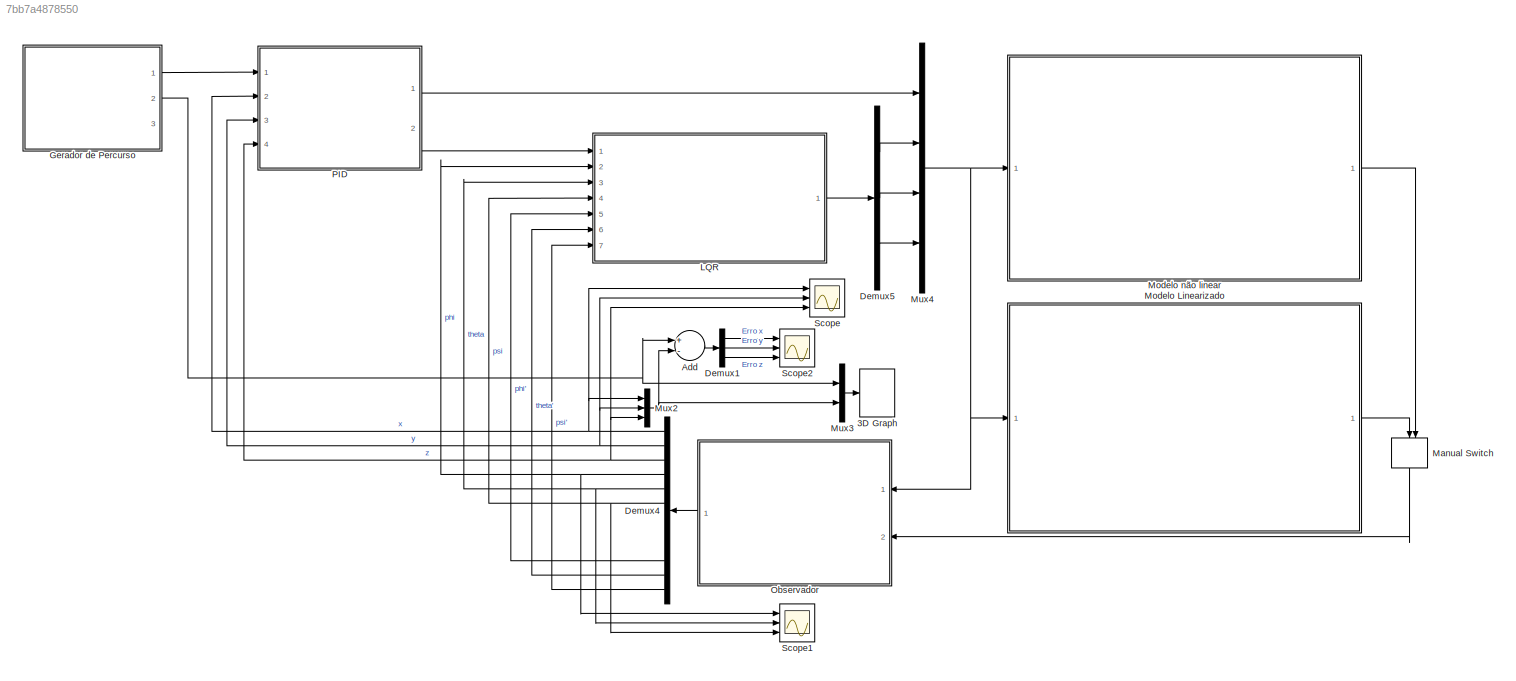
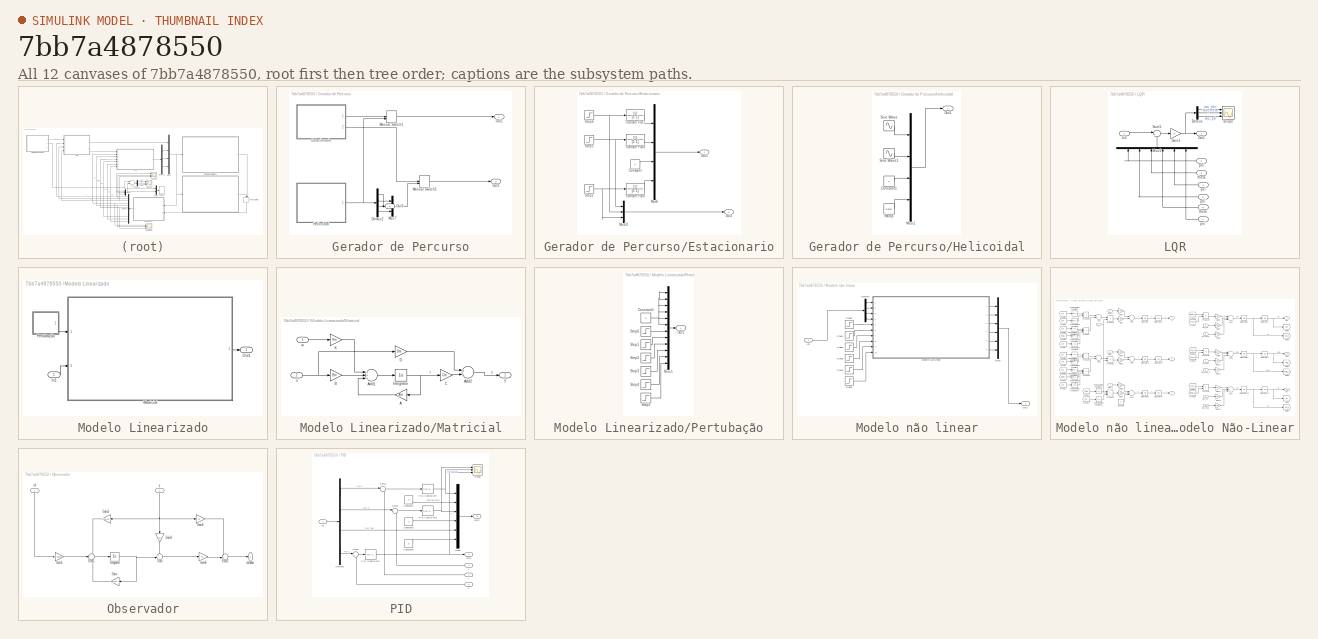
[diagram: thumbnail index - all 12 canvases of the model, root first then tree order]
MODEL slx_7bb7a4878550
KIND model
CONFIG AbsTol = auto
CONFIG EnableMultiTasking = off
CONFIG FixedStep = auto
CONFIG MaxStep = auto
CONFIG MinStep = auto
CONFIG RelTol = 1e-3
CONFIG SampleTimeConstraint = Unconstrained
CONFIG Solver = VariableStepAuto
CONFIG SolverName = VariableStepAuto
CONFIG StartTime = 0.0
CONFIG StopTime = 280
BLOCK [S-Function] 3D Graph
  CopyFcn = if exist('sfun3d','file'), sfun3d([],[],[],'CopyBlock'); end
  DeleteFcn = if exist('sfun3d','file'), sfun3d([],[],[],'DeleteBlock'); end
  EnableBusSupport = off
  FunctionName = sfun3d
  LoadFcn = if exist('sfun3d','file'), sfun3d([],[],[],'LoadBlock'); end
  NameChangeFcn = if exist('sfun3d','file'), sfun3d([],[],[],'NameChange'); end
  Parameters = ax,T,np,cp,gd,ls,mk,mx,hd,tb
  Ports = [1]
  SFcnIsStateOwnerBlock = off
  SFunctionDeploymentMode = off
BLOCK [Sum] Add
  InputSameDT = off
  Inputs = +-
  OutDataTypeStr = Inherit: Inherit via internal rule
  Ports = [2, 1]
  SaturateOnIntegerOverflow = off
BLOCK [Demux] Demux1
  DisplayOption = bar
  Outputs = 3
  Ports = [1, 3]
BLOCK [Demux] Demux4
  DisplayOption = bar
  Outputs = 12
  Ports = [1, 12]
BLOCK [Demux] Demux5
  DisplayOption = bar
  Outputs = 3
  Ports = [1, 3]
BLOCK [SubSystem] Gerador de Percurso
  Ports = [0, 3]
  RequestExecContextInheritance = off
  Variant = off
BLOCK [Demux] Gerador de Percurso/Demux2
  DisplayOption = bar
  Ports = [1, 4]
BLOCK [SubSystem] Gerador de Percurso/Estacionario
  Ports = [0, 2]
  RequestExecContextInheritance = off
  Variant = off
BLOCK [Constant] Gerador de Percurso/Estacionario/Constant
  Value = 0
BLOCK [Mux] Gerador de Percurso/Estacionario/Mux10
  DisplayOption = bar
  Inputs = 3
  Ports = [3, 1]
BLOCK [Mux] Gerador de Percurso/Estacionario/Mux6
  DisplayOption = bar
  Ports = [4, 1]
BLOCK [Outport] Gerador de Percurso/Estacionario/Out1
  IconDisplay = Port number
BLOCK [Outport] Gerador de Percurso/Estacionario/Out2
  IconDisplay = Port number
  Port = 2
BLOCK [Step] Gerador de Percurso/Estacionario/Step2
  After = 10
  SampleTime = 0
BLOCK [Step] Gerador de Percurso/Estacionario/Step5
  After = 2
  SampleTime = 0
BLOCK [Step] Gerador de Percurso/Estacionario/Step6
  After = 2
  SampleTime = 0
BLOCK [TransferFcn] Gerador de Percurso/Estacionario/Transfer Fcn4
  Denominator = [5 1]
BLOCK [TransferFcn] Gerador de Percurso/Estacionario/Transfer Fcn6
  Denominator = [5 1]
BLOCK [TransferFcn] Gerador de Percurso/Estacionario/Transfer Fcn7
  Denominator = [5 1]
BLOCK [SubSystem] Gerador de Percurso/Helicoidal
  Ports = [0, 1]
  RequestExecContextInheritance = off
  Variant = off
BLOCK [Constant] Gerador de Percurso/Helicoidal/Constant1
  Value = 0
BLOCK [Mux] Gerador de Percurso/Helicoidal/Mux1
  DisplayOption = bar
  Ports = [4, 1]
BLOCK [Outport] Gerador de Percurso/Helicoidal/Out1
  IconDisplay = Port number
BLOCK [Reference] Gerador de Percurso/Helicoidal/Ramp  REF=simulink/Sources/Ramp
  Ports = [0, 1]
  SourceBlock = simulink/Sources/Ramp
  SourceProductBaseCode = SL
  SourceProductName = Simulink
  SourceType = Ramp
BLOCK [Sin] Gerador de Percurso/Helicoidal/Sine Wave
  Amplitude = 3
  Frequency = 0.1
  Ports = [0, 1]
  SampleTime = 0
BLOCK [Sin] Gerador de Percurso/Helicoidal/Sine Wave1
  Amplitude = 3
  Frequency = 0.1
  Phase = pi/2
  Ports = [0, 1]
  SampleTime = 0
BLOCK [ManualSwitch] Gerador de Percurso/Manual Switch1
BLOCK [ManualSwitch] Gerador de Percurso/Manual Switch2
BLOCK [Mux] Gerador de Percurso/Mux7
  DisplayOption = bar
  Inputs = 3
  Ports = [3, 1]
BLOCK [Outport] Gerador de Percurso/Out1
  IconDisplay = Port number
BLOCK [Outport] Gerador de Percurso/Out2
  IconDisplay = Port number
  Port = 2
BLOCK [Outport] Gerador de Percurso/Out3
  IconDisplay = Port number
  Port = 3
BLOCK [SubSystem] LQR
  Ports = [7, 1]
  RequestExecContextInheritance = off
  Variant = off
BLOCK [Demux] LQR/Demux
  DisplayOption = bar
  Outputs = 3
  Ports = [1, 3]
BLOCK [Gain] LQR/Gain1
  Gain = K
  Multiplication = Matrix(K*u) (u vector)
  OutDataTypeStr = Inherit: Inherit via internal rule
  ParamDataTypeStr = Inherit: Inherit via internal rule
  SaturateOnIntegerOverflow = off
BLOCK [Inport] LQR/In1
  IconDisplay = Port number
BLOCK [Mux] LQR/Mux5
  DisplayOption = bar
  Inputs = 6
  Ports = [6, 1]
BLOCK [Outport] LQR/Out1
  IconDisplay = Port number
BLOCK [Scope] LQR/Scope
  NumInputPorts = 3
  Ports = [3]
  ScopeSpecificationString = Simulink.scopes.TimeScopeBlockCfg('CurrentConfiguration', extmgr.ConfigurationSet(extmgr.Configuration('Core','General UI',true,'FigureColor',[1 1 1]),extmgr.Configuration('Core','Source UI',true),extmgr.Configuration('Sources','WiredSimulink',true,'DataLoggingVariableName','ScopeData4'),extmgr.Configuration('Visuals','Time Domain',true,'SerializedDisplays',{struct('MinYLimReal','-0.11622','MaxYLi...<+3071ch>
BLOCK [Sum] LQR/Sum5
  IconShape = round
  InputSameDT = off
  Inputs = |+-
  OutDataTypeStr = Inherit: Inherit via internal rule
  Ports = [2, 1]
  SaturateOnIntegerOverflow = off
BLOCK [Inport] LQR/phi
  IconDisplay = Port number
  Port = 2
BLOCK [Inport] LQR/phi'
  IconDisplay = Port number
  Port = 5
BLOCK [Inport] LQR/psi
  IconDisplay = Port number
  Port = 4
BLOCK [Inport] LQR/psi'
  IconDisplay = Port number
  Port = 7
BLOCK [Inport] LQR/theta
  IconDisplay = Port number
  Port = 3
BLOCK [Inport] LQR/theta'
  IconDisplay = Port number
  Port = 6
BLOCK [ManualSwitch] Manual Switch
BLOCK [SubSystem] Modelo Linearizado
  Ports = [1, 1]
  RequestExecContextInheritance = off
  Variant = off
BLOCK [Inport] Modelo Linearizado/In1
  IconDisplay = Port number
BLOCK [SubSystem] Modelo Linearizado/Matricial
  Ports = [2, 1]
  RequestExecContextInheritance = off
  Variant = off
BLOCK [Gain] Modelo Linearizado/Matricial/A
  Gain = Am
  Multiplication = Matrix(K*u) (u vector)
  OutDataTypeStr = Inherit: Inherit via internal rule
  ParamDataTypeStr = Inherit: Inherit via internal rule
  SaturateOnIntegerOverflow = off
BLOCK [Sum] Modelo Linearizado/Matricial/Add1
  InputSameDT = off
  Inputs = +++
  OutDataTypeStr = Inherit: Inherit via internal rule
  Ports = [3, 1]
  SaturateOnIntegerOverflow = off
BLOCK [Sum] Modelo Linearizado/Matricial/Add2
  InputSameDT = off
  OutDataTypeStr = Inherit: Inherit via internal rule
  Ports = [2, 1]
  SaturateOnIntegerOverflow = off
BLOCK [Gain] Modelo Linearizado/Matricial/B
  Gain = Bm
  Multiplication = Matrix(K*u) (u vector)
  OutDataTypeStr = Inherit: Inherit via internal rule
  ParamDataTypeStr = Inherit: Inherit via internal rule
  SaturateOnIntegerOverflow = off
BLOCK [Gain] Modelo Linearizado/Matricial/C
  Gain = Cm
  Multiplication = Matrix(K*u) (u vector)
  OutDataTypeStr = Inherit: Inherit via internal rule
  ParamDataTypeStr = Inherit: Inherit via internal rule
  SaturateOnIntegerOverflow = off
BLOCK [Gain] Modelo Linearizado/Matricial/D
  Gain = Dm
  Multiplication = Matrix(K*u) (u vector)
  OutDataTypeStr = Inherit: Inherit via internal rule
  ParamDataTypeStr = Inherit: Inherit via internal rule
  SaturateOnIntegerOverflow = off
BLOCK [Integrator] Modelo Linearizado/Matricial/Integrator
  Ports = [1, 1]
BLOCK [Gain] Modelo Linearizado/Matricial/K
  Gain = Km
  Multiplication = Matrix(K*u) (u vector)
  OutDataTypeStr = Inherit: Inherit via internal rule
  ParamDataTypeStr = Inherit: Inherit via internal rule
  SaturateOnIntegerOverflow = off
BLOCK [Inport] Modelo Linearizado/Matricial/u
  IconDisplay = Port number
  Port = 2
BLOCK [Inport] Modelo Linearizado/Matricial/w
  IconDisplay = Port number
BLOCK [Outport] Modelo Linearizado/Matricial/y
  IconDisplay = Port number
BLOCK [Outport] Modelo Linearizado/Out1
  IconDisplay = Port number
BLOCK [SubSystem] Modelo Linearizado/Pertubação
  Ports = [0, 1]
  RequestExecContextInheritance = off
  Variant = off
BLOCK [Constant] Modelo Linearizado/Pertubação/Constant1
  Value = 0
BLOCK [Mux] Modelo Linearizado/Pertubação/Mux1
  DisplayOption = bar
  Inputs = 12
  Ports = [12, 1]
BLOCK [Outport] Modelo Linearizado/Pertubação/Out1
  IconDisplay = Port number
BLOCK [Step] Modelo Linearizado/Pertubação/Step1
  After = 0.01
  SampleTime = 0
  Time = 250
BLOCK [Step] Modelo Linearizado/Pertubação/Step2
  After = 0.01
  SampleTime = 0
  Time = 300
BLOCK [Step] Modelo Linearizado/Pertubação/Step3
  After = 0.01
  SampleTime = 0
  Time = 350
BLOCK [Step] Modelo Linearizado/Pertubação/Step4
  After = 0.01
  SampleTime = 0
  Time = 400
BLOCK [Step] Modelo Linearizado/Pertubação/Step5
  After = 0.01
  SampleTime = 0
  Time = 450
BLOCK [Step] Modelo Linearizado/Pertubação/Step6
  After = 0.01
  SampleTime = 0
  Time = 200
BLOCK [SubSystem] Modelo não linear
  Ports = [1, 1]
  RequestExecContextInheritance = off
  Variant = off
BLOCK [Demux] Modelo não linear/Demux7
  DisplayOption = bar
  Ports = [1, 4]
BLOCK [Inport] Modelo não linear/In1
  IconDisplay = Port number
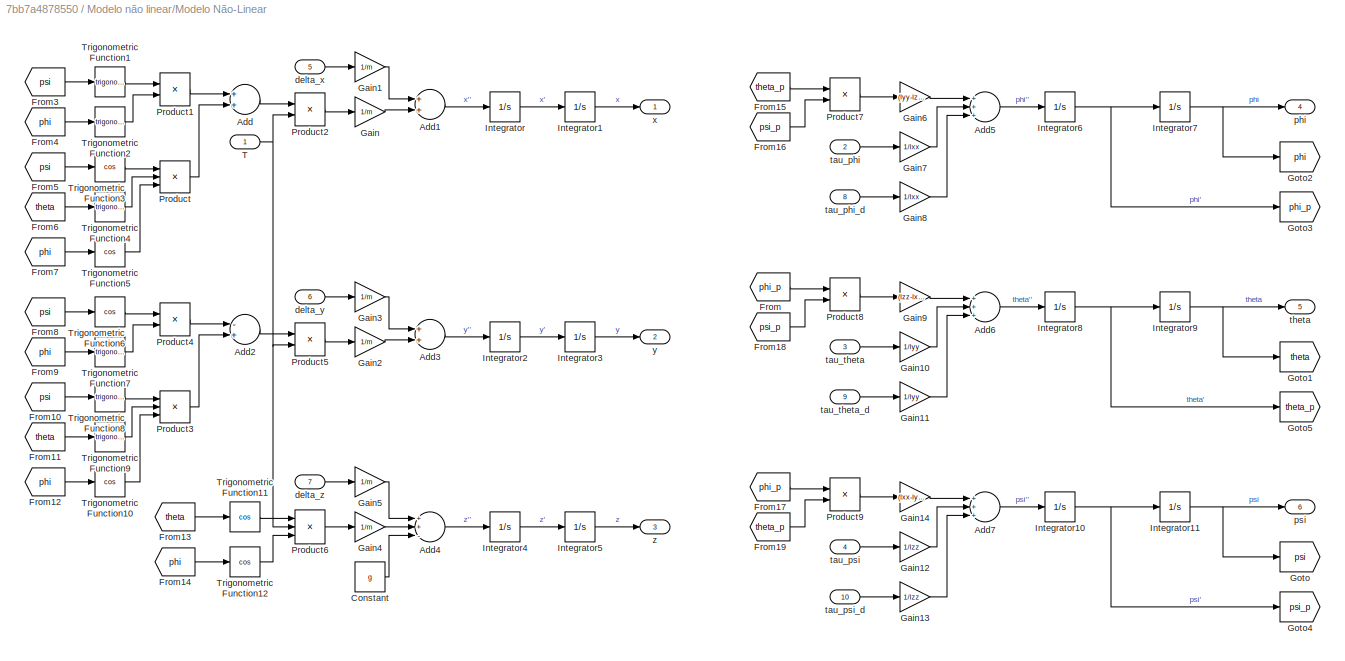
BLOCK [SubSystem] Modelo não linear/Modelo Não-Linear
  Ports = [10, 6]
  RequestExecContextInheritance = off
  Variant = off
BLOCK [Sum] Modelo não linear/Modelo Não-Linear/Add
  InputSameDT = off
  OutDataTypeStr = Inherit: Inherit via internal rule
  Ports = [2, 1]
  SaturateOnIntegerOverflow = off
BLOCK [Sum] Modelo não linear/Modelo Não-Linear/Add1
  InputSameDT = off
  OutDataTypeStr = Inherit: Inherit via internal rule
  Ports = [2, 1]
  SaturateOnIntegerOverflow = off
BLOCK [Sum] Modelo não linear/Modelo Não-Linear/Add2
  InputSameDT = off
  Inputs = -+
  OutDataTypeStr = Inherit: Inherit via internal rule
  Ports = [2, 1]
  SaturateOnIntegerOverflow = off
BLOCK [Sum] Modelo não linear/Modelo Não-Linear/Add3
  InputSameDT = off
  OutDataTypeStr = Inherit: Inherit via internal rule
  Ports = [2, 1]
  SaturateOnIntegerOverflow = off
BLOCK [Sum] Modelo não linear/Modelo Não-Linear/Add4
  InputSameDT = off
  Inputs = ++-
  OutDataTypeStr = Inherit: Inherit via internal rule
  Ports = [3, 1]
  SaturateOnIntegerOverflow = off
BLOCK [Sum] Modelo não linear/Modelo Não-Linear/Add5
  InputSameDT = off
  Inputs = +++
  OutDataTypeStr = Inherit: Inherit via internal rule
  Ports = [3, 1]
  SaturateOnIntegerOverflow = off
BLOCK [Sum] Modelo não linear/Modelo Não-Linear/Add6
  InputSameDT = off
  Inputs = +++
  OutDataTypeStr = Inherit: Inherit via internal rule
  Ports = [3, 1]
  SaturateOnIntegerOverflow = off
BLOCK [Sum] Modelo não linear/Modelo Não-Linear/Add7
  InputSameDT = off
  Inputs = +++
  OutDataTypeStr = Inherit: Inherit via internal rule
  Ports = [3, 1]
  SaturateOnIntegerOverflow = off
BLOCK [Constant] Modelo não linear/Modelo Não-Linear/Constant
  Value = g
BLOCK [From] Modelo não linear/Modelo Não-Linear/From
  GotoTag = phi_p
BLOCK [From] Modelo não linear/Modelo Não-Linear/From10
  GotoTag = psi
BLOCK [From] Modelo não linear/Modelo Não-Linear/From11
  GotoTag = theta
BLOCK [From] Modelo não linear/Modelo Não-Linear/From12
  GotoTag = phi
BLOCK [From] Modelo não linear/Modelo Não-Linear/From13
  GotoTag = theta
BLOCK [From] Modelo não linear/Modelo Não-Linear/From14
  GotoTag = phi
BLOCK [From] Modelo não linear/Modelo Não-Linear/From15
  GotoTag = theta_p
BLOCK [From] Modelo não linear/Modelo Não-Linear/From16
  GotoTag = psi_p
BLOCK [From] Modelo não linear/Modelo Não-Linear/From17
  GotoTag = phi_p
BLOCK [From] Modelo não linear/Modelo Não-Linear/From18
  GotoTag = psi_p
BLOCK [From] Modelo não linear/Modelo Não-Linear/From19
  GotoTag = theta_p
BLOCK [From] Modelo não linear/Modelo Não-Linear/From3
  GotoTag = psi
BLOCK [From] Modelo não linear/Modelo Não-Linear/From4
  GotoTag = phi
BLOCK [From] Modelo não linear/Modelo Não-Linear/From5
  GotoTag = psi
BLOCK [From] Modelo não linear/Modelo Não-Linear/From6
  GotoTag = theta
BLOCK [From] Modelo não linear/Modelo Não-Linear/From7
  GotoTag = phi
BLOCK [From] Modelo não linear/Modelo Não-Linear/From8
  GotoTag = psi
BLOCK [From] Modelo não linear/Modelo Não-Linear/From9
  GotoTag = phi
BLOCK [Gain] Modelo não linear/Modelo Não-Linear/Gain
  Gain = 1/m
  OutDataTypeStr = Inherit: Inherit via internal rule
  ParamDataTypeStr = Inherit: Inherit via internal rule
  SaturateOnIntegerOverflow = off
BLOCK [Gain] Modelo não linear/Modelo Não-Linear/Gain1
  Gain = 1/m
  OutDataTypeStr = Inherit: Inherit via internal rule
  ParamDataTypeStr = Inherit: Inherit via internal rule
  SaturateOnIntegerOverflow = off
BLOCK [Gain] Modelo não linear/Modelo Não-Linear/Gain10
  Gain = 1/Iyy
  OutDataTypeStr = Inherit: Inherit via internal rule
  ParamDataTypeStr = Inherit: Inherit via internal rule
  SaturateOnIntegerOverflow = off
BLOCK [Gain] Modelo não linear/Modelo Não-Linear/Gain11
  Gain = 1/Iyy
  OutDataTypeStr = Inherit: Inherit via internal rule
  ParamDataTypeStr = Inherit: Inherit via internal rule
  SaturateOnIntegerOverflow = off
BLOCK [Gain] Modelo não linear/Modelo Não-Linear/Gain12
  Gain = 1/Izz
  OutDataTypeStr = Inherit: Inherit via internal rule
  ParamDataTypeStr = Inherit: Inherit via internal rule
  SaturateOnIntegerOverflow = off
BLOCK [Gain] Modelo não linear/Modelo Não-Linear/Gain13
  Gain = 1/Izz
  OutDataTypeStr = Inherit: Inherit via internal rule
  ParamDataTypeStr = Inherit: Inherit via internal rule
  SaturateOnIntegerOverflow = off
BLOCK [Gain] Modelo não linear/Modelo Não-Linear/Gain14
  Gain = (Ixx-Iyy)/Izz
  OutDataTypeStr = Inherit: Inherit via internal rule
  ParamDataTypeStr = Inherit: Inherit via internal rule
  SaturateOnIntegerOverflow = off
BLOCK [Gain] Modelo não linear/Modelo Não-Linear/Gain2
  Gain = 1/m
  OutDataTypeStr = Inherit: Inherit via internal rule
  ParamDataTypeStr = Inherit: Inherit via internal rule
  SaturateOnIntegerOverflow = off
BLOCK [Gain] Modelo não linear/Modelo Não-Linear/Gain3
  Gain = 1/m
  OutDataTypeStr = Inherit: Inherit via internal rule
  ParamDataTypeStr = Inherit: Inherit via internal rule
  SaturateOnIntegerOverflow = off
BLOCK [Gain] Modelo não linear/Modelo Não-Linear/Gain4
  Gain = 1/m
  OutDataTypeStr = Inherit: Inherit via internal rule
  ParamDataTypeStr = Inherit: Inherit via internal rule
  SaturateOnIntegerOverflow = off
BLOCK [Gain] Modelo não linear/Modelo Não-Linear/Gain5
  Gain = 1/m
  OutDataTypeStr = Inherit: Inherit via internal rule
  ParamDataTypeStr = Inherit: Inherit via internal rule
  SaturateOnIntegerOverflow = off
BLOCK [Gain] Modelo não linear/Modelo Não-Linear/Gain6
  Gain = (Iyy-Izz)/Ixx
  OutDataTypeStr = Inherit: Inherit via internal rule
  ParamDataTypeStr = Inherit: Inherit via internal rule
  SaturateOnIntegerOverflow = off
BLOCK [Gain] Modelo não linear/Modelo Não-Linear/Gain7
  Gain = 1/Ixx
  OutDataTypeStr = Inherit: Inherit via internal rule
  ParamDataTypeStr = Inherit: Inherit via internal rule
  SaturateOnIntegerOverflow = off
BLOCK [Gain] Modelo não linear/Modelo Não-Linear/Gain8
  Gain = 1/Ixx
  OutDataTypeStr = Inherit: Inherit via internal rule
  ParamDataTypeStr = Inherit: Inherit via internal rule
  SaturateOnIntegerOverflow = off
BLOCK [Gain] Modelo não linear/Modelo Não-Linear/Gain9
  Gain = (Izz-Ixx)/Iyy
  OutDataTypeStr = Inherit: Inherit via internal rule
  ParamDataTypeStr = Inherit: Inherit via internal rule
  SaturateOnIntegerOverflow = off
BLOCK [Goto] Modelo não linear/Modelo Não-Linear/Goto
  GotoTag = psi
BLOCK [Goto] Modelo não linear/Modelo Não-Linear/Goto1
  GotoTag = theta
BLOCK [Goto] Modelo não linear/Modelo Não-Linear/Goto2
  GotoTag = phi
BLOCK [Goto] Modelo não linear/Modelo Não-Linear/Goto3
  GotoTag = phi_p
BLOCK [Goto] Modelo não linear/Modelo Não-Linear/Goto4
  GotoTag = psi_p
BLOCK [Goto] Modelo não linear/Modelo Não-Linear/Goto5
  GotoTag = theta_p
BLOCK [Integrator] Modelo não linear/Modelo Não-Linear/Integrator
  Ports = [1, 1]
BLOCK [Integrator] Modelo não linear/Modelo Não-Linear/Integrator1
  Ports = [1, 1]
BLOCK [Integrator] Modelo não linear/Modelo Não-Linear/Integrator10
  Ports = [1, 1]
BLOCK [Integrator] Modelo não linear/Modelo Não-Linear/Integrator11
  Ports = [1, 1]
BLOCK [Integrator] Modelo não linear/Modelo Não-Linear/Integrator2
  Ports = [1, 1]
BLOCK [Integrator] Modelo não linear/Modelo Não-Linear/Integrator3
  Ports = [1, 1]
BLOCK [Integrator] Modelo não linear/Modelo Não-Linear/Integrator4
  Ports = [1, 1]
BLOCK [Integrator] Modelo não linear/Modelo Não-Linear/Integrator5
  Ports = [1, 1]
BLOCK [Integrator] Modelo não linear/Modelo Não-Linear/Integrator6
  Ports = [1, 1]
BLOCK [Integrator] Modelo não linear/Modelo Não-Linear/Integrator7
  Ports = [1, 1]
BLOCK [Integrator] Modelo não linear/Modelo Não-Linear/Integrator8
  Ports = [1, 1]
BLOCK [Integrator] Modelo não linear/Modelo Não-Linear/Integrator9
  Ports = [1, 1]
BLOCK [Product] Modelo não linear/Modelo Não-Linear/Product
  InputSameDT = off
  Inputs = 3
  OutDataTypeStr = Inherit: Inherit via internal rule
  Ports = [3, 1]
  RndMeth = Floor
  SaturateOnIntegerOverflow = off
BLOCK [Product] Modelo não linear/Modelo Não-Linear/Product1
  InputSameDT = off
  OutDataTypeStr = Inherit: Inherit via internal rule
  Ports = [2, 1]
  RndMeth = Floor
  SaturateOnIntegerOverflow = off
BLOCK [Product] Modelo não linear/Modelo Não-Linear/Product2
  InputSameDT = off
  OutDataTypeStr = Inherit: Inherit via internal rule
  Ports = [2, 1]
  RndMeth = Floor
  SaturateOnIntegerOverflow = off
BLOCK [Product] Modelo não linear/Modelo Não-Linear/Product3
  InputSameDT = off
  Inputs = 3
  OutDataTypeStr = Inherit: Inherit via internal rule
  Ports = [3, 1]
  RndMeth = Floor
  SaturateOnIntegerOverflow = off
BLOCK [Product] Modelo não linear/Modelo Não-Linear/Product4
  InputSameDT = off
  OutDataTypeStr = Inherit: Inherit via internal rule
  Ports = [2, 1]
  RndMeth = Floor
  SaturateOnIntegerOverflow = off
BLOCK [Product] Modelo não linear/Modelo Não-Linear/Product5
  InputSameDT = off
  OutDataTypeStr = Inherit: Inherit via internal rule
  Ports = [2, 1]
  RndMeth = Floor
  SaturateOnIntegerOverflow = off
BLOCK [Product] Modelo não linear/Modelo Não-Linear/Product6
  InputSameDT = off
  Inputs = 3
  OutDataTypeStr = Inherit: Inherit via internal rule
  Ports = [3, 1]
  RndMeth = Floor
  SaturateOnIntegerOverflow = off
BLOCK [Product] Modelo não linear/Modelo Não-Linear/Product7
  InputSameDT = off
  OutDataTypeStr = Inherit: Inherit via internal rule
  Ports = [2, 1]
  RndMeth = Floor
  SaturateOnIntegerOverflow = off
BLOCK [Product] Modelo não linear/Modelo Não-Linear/Product8
  InputSameDT = off
  OutDataTypeStr = Inherit: Inherit via internal rule
  Ports = [2, 1]
  RndMeth = Floor
  SaturateOnIntegerOverflow = off
BLOCK [Product] Modelo não linear/Modelo Não-Linear/Product9
  InputSameDT = off
  OutDataTypeStr = Inherit: Inherit via internal rule
  Ports = [2, 1]
  RndMeth = Floor
  SaturateOnIntegerOverflow = off
BLOCK [Inport] Modelo não linear/Modelo Não-Linear/T
  IconDisplay = Port number
BLOCK [Trigonometry] Modelo não linear/Modelo Não-Linear/Trigonometric Function1
  Ports = [1, 1]
BLOCK [Trigonometry] Modelo não linear/Modelo Não-Linear/Trigonometric Function10
  Operator = cos
  Ports = [1, 1]
BLOCK [Trigonometry] Modelo não linear/Modelo Não-Linear/Trigonometric Function11
  Operator = cos
  Ports = [1, 1]
BLOCK [Trigonometry] Modelo não linear/Modelo Não-Linear/Trigonometric Function12
  Operator = cos
  Ports = [1, 1]
BLOCK [Trigonometry] Modelo não linear/Modelo Não-Linear/Trigonometric Function2
  Ports = [1, 1]
BLOCK [Trigonometry] Modelo não linear/Modelo Não-Linear/Trigonometric Function3
  Operator = cos
  Ports = [1, 1]
BLOCK [Trigonometry] Modelo não linear/Modelo Não-Linear/Trigonometric Function4
  Ports = [1, 1]
BLOCK [Trigonometry] Modelo não linear/Modelo Não-Linear/Trigonometric Function5
  Operator = cos
  Ports = [1, 1]
BLOCK [Trigonometry] Modelo não linear/Modelo Não-Linear/Trigonometric Function6
  Operator = cos
  Ports = [1, 1]
BLOCK [Trigonometry] Modelo não linear/Modelo Não-Linear/Trigonometric Function7
  Ports = [1, 1]
BLOCK [Trigonometry] Modelo não linear/Modelo Não-Linear/Trigonometric Function8
  Ports = [1, 1]
BLOCK [Trigonometry] Modelo não linear/Modelo Não-Linear/Trigonometric Function9
  Ports = [1, 1]
BLOCK [Inport] Modelo não linear/Modelo Não-Linear/delta_x
  IconDisplay = Port number
  Port = 5
BLOCK [Inport] Modelo não linear/Modelo Não-Linear/delta_y
  IconDisplay = Port number
  Port = 6
BLOCK [Inport] Modelo não linear/Modelo Não-Linear/delta_z
  IconDisplay = Port number
  Port = 7
BLOCK [Outport] Modelo não linear/Modelo Não-Linear/phi
  IconDisplay = Port number
  Port = 4
BLOCK [Outport] Modelo não linear/Modelo Não-Linear/psi
  IconDisplay = Port number
  Port = 6
BLOCK [Inport] Modelo não linear/Modelo Não-Linear/tau_phi
  IconDisplay = Port number
  Port = 2
BLOCK [Inport] Modelo não linear/Modelo Não-Linear/tau_phi_d
  IconDisplay = Port number
  Port = 8
BLOCK [Inport] Modelo não linear/Modelo Não-Linear/tau_psi
  IconDisplay = Port number
  Port = 4
BLOCK [Inport] Modelo não linear/Modelo Não-Linear/tau_psi_d
  IconDisplay = Port number
  Port = 10
BLOCK [Inport] Modelo não linear/Modelo Não-Linear/tau_theta
  IconDisplay = Port number
  Port = 3
BLOCK [Inport] Modelo não linear/Modelo Não-Linear/tau_theta_d
  IconDisplay = Port number
  Port = 9
BLOCK [Outport] Modelo não linear/Modelo Não-Linear/theta
  IconDisplay = Port number
  Port = 5
BLOCK [Outport] Modelo não linear/Modelo Não-Linear/x
  IconDisplay = Port number
BLOCK [Outport] Modelo não linear/Modelo Não-Linear/y
  IconDisplay = Port number
  Port = 2
BLOCK [Outport] Modelo não linear/Modelo Não-Linear/z
  IconDisplay = Port number
  Port = 3
BLOCK [Mux] Modelo não linear/Mux9
  DisplayOption = bar
  Inputs = 6
  Ports = [6, 1]
BLOCK [Outport] Modelo não linear/Out1
  IconDisplay = Port number
BLOCK [Step] Modelo não linear/Step1
  After = 0.5
  SampleTime = 0
  Time = 250
BLOCK [Step] Modelo não linear/Step2
  After = 0.5
  SampleTime = 0
  Time = 300
BLOCK [Step] Modelo não linear/Step3
  After = 0.5
  SampleTime = 0
  Time = 350
BLOCK [Step] Modelo não linear/Step4
  After = 0.5
  SampleTime = 0
  Time = 400
BLOCK [Step] Modelo não linear/Step5
  After = 0.5
  SampleTime = 0
  Time = 450
BLOCK [Step] Modelo não linear/Step6
  After = 0.5
  SampleTime = 0
  Time = 200
BLOCK [Mux] Mux2
  DisplayOption = bar
  Inputs = 3
  Ports = [3, 1]
BLOCK [Mux] Mux3
  DisplayOption = bar
  Inputs = 2
  Ports = [2, 1]
BLOCK [Mux] Mux4
  DisplayOption = bar
  Ports = [4, 1]
BLOCK [SubSystem] Observador
  Ports = [2, 1]
  RequestExecContextInheritance = off
  Variant = off
BLOCK [Gain] Observador/Gain
  Gain = A22-Lb*A12
  Multiplication = Matrix(K*u) (u vector)
  OutDataTypeStr = Inherit: Inherit via internal rule
  ParamDataTypeStr = Inherit: Inherit via internal rule
  SaturateOnIntegerOverflow = off
BLOCK [Gain] Observador/Gain1
  Gain = B2-Lb*B1
  Multiplication = Matrix(K*u) (u vector)
  OutDataTypeStr = Inherit: Inherit via internal rule
  ParamDataTypeStr = Inherit: Inherit via internal rule
  SaturateOnIntegerOverflow = off
BLOCK [Gain] Observador/Gain2
  Gain = Lb
  Multiplication = Matrix(K*u) (u vector)
  OutDataTypeStr = Inherit: Inherit via internal rule
  ParamDataTypeStr = Inherit: Inherit via internal rule
  SaturateOnIntegerOverflow = off
BLOCK [Gain] Observador/Gain3
  Gain = (A22-Lb*A12)*Lb + (A21 - Lb*A11)
  Multiplication = Matrix(K*u) (u vector)
  OutDataTypeStr = Inherit: Inherit via internal rule
  ParamDataTypeStr = Inherit: Inherit via internal rule
  SaturateOnIntegerOverflow = off
BLOCK [Gain] Observador/Gain5
  Gain = Y1
  Multiplication = Matrix(K*u) (u vector)
  OutDataTypeStr = Inherit: Inherit via internal rule
  ParamDataTypeStr = Inherit: Inherit via internal rule
  SaturateOnIntegerOverflow = off
BLOCK [Gain] Observador/Gain6
  Gain = Y2
  Multiplication = Matrix(K*u) (u vector)
  OutDataTypeStr = Inherit: Inherit via internal rule
  ParamDataTypeStr = Inherit: Inherit via internal rule
  SaturateOnIntegerOverflow = off
BLOCK [Integrator] Observador/Integrator
  Ports = [1, 1]
BLOCK [Sum] Observador/Sum
  IconShape = round
  InputSameDT = off
  Inputs = ++|
  OutDataTypeStr = Inherit: Inherit via internal rule
  Ports = [2, 1]
  SaturateOnIntegerOverflow = off
BLOCK [Sum] Observador/Sum1
  IconShape = round
  InputSameDT = off
  Inputs = +++
  OutDataTypeStr = Inherit: Inherit via internal rule
  Ports = [3, 1]
  SaturateOnIntegerOverflow = off
BLOCK [Sum] Observador/Sum2
  IconShape = round
  InputSameDT = off
  Inputs = ++|
  OutDataTypeStr = Inherit: Inherit via internal rule
  Ports = [2, 1]
  SaturateOnIntegerOverflow = off
BLOCK [Outport] Observador/estados 
  IconDisplay = Port number
BLOCK [Inport] Observador/ref
  IconDisplay = Port number
BLOCK [Inport] Observador/y
  IconDisplay = Port number
  Port = 2
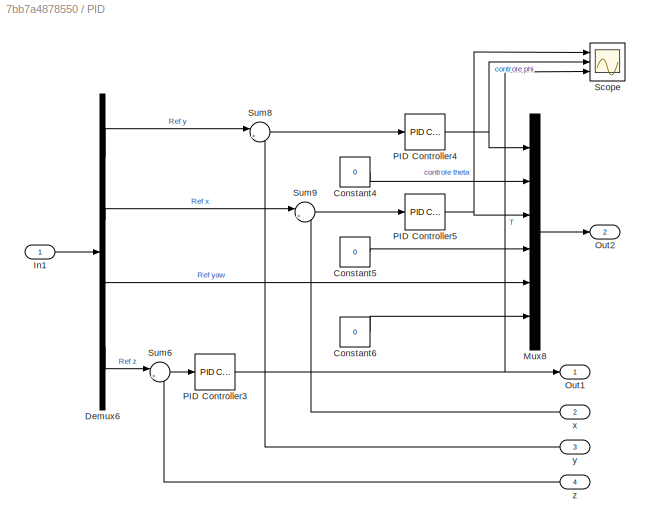
BLOCK [SubSystem] PID
  Ports = [4, 2]
  RequestExecContextInheritance = off
  Variant = off
BLOCK [Constant] PID/Constant4
  Value = 0
BLOCK [Constant] PID/Constant5
  Value = 0
BLOCK [Constant] PID/Constant6
  Value = 0
BLOCK [Demux] PID/Demux6
  DisplayOption = bar
  Ports = [1, 4]
BLOCK [Inport] PID/In1
  IconDisplay = Port number
BLOCK [Mux] PID/Mux8
  DisplayOption = bar
  Inputs = 6
  Ports = [6, 1]
BLOCK [Outport] PID/Out1
  IconDisplay = Port number
BLOCK [Outport] PID/Out2
  IconDisplay = Port number
  Port = 2
BLOCK [Reference] PID/PID Controller3  REF=simulink/Continuous/PID Controller
  Ports = [1, 1]
  SourceBlock = simulink/Continuous/PID Controller
  SourceProductBaseCode = SL
  SourceProductName = Simulink
  SourceType = PID 1dof
BLOCK [Reference] PID/PID Controller4  REF=simulink/Continuous/PID Controller
  Ports = [1, 1]
  SourceBlock = simulink/Continuous/PID Controller
  SourceProductBaseCode = SL
  SourceProductName = Simulink
  SourceType = PID 1dof
BLOCK [Reference] PID/PID Controller5  REF=simulink/Continuous/PID Controller
  Ports = [1, 1]
  SourceBlock = simulink/Continuous/PID Controller
  SourceProductBaseCode = SL
  SourceProductName = Simulink
  SourceType = PID 1dof
BLOCK [Scope] PID/Scope
  NumInputPorts = 3
  Ports = [3]
  ScopeSpecificationString = Simulink.scopes.TimeScopeBlockCfg('CurrentConfiguration', extmgr.ConfigurationSet(extmgr.Configuration('Core','General UI',true,'FigureColor',[1 1 1]),extmgr.Configuration('Core','Source UI',true),extmgr.Configuration('Sources','WiredSimulink',true,'DataLoggingVariableName','ScopeData3'),extmgr.Configuration('Visuals','Time Domain',true,'SerializedDisplays',{struct('MinYLimReal','-0.00982','MaxYLi...<+3075ch>
BLOCK [Sum] PID/Sum6
  IconShape = round
  InputSameDT = off
  Inputs = |+-
  OutDataTypeStr = Inherit: Inherit via internal rule
  Ports = [2, 1]
  SaturateOnIntegerOverflow = off
BLOCK [Sum] PID/Sum8
  IconShape = round
  InputSameDT = off
  Inputs = |+-
  OutDataTypeStr = Inherit: Inherit via internal rule
  Ports = [2, 1]
  SaturateOnIntegerOverflow = off
BLOCK [Sum] PID/Sum9
  IconShape = round
  InputSameDT = off
  Inputs = |+-
  OutDataTypeStr = Inherit: Inherit via internal rule
  Ports = [2, 1]
  SaturateOnIntegerOverflow = off
BLOCK [Inport] PID/x
  IconDisplay = Port number
  Port = 2
BLOCK [Inport] PID/y
  IconDisplay = Port number
  Port = 3
BLOCK [Inport] PID/z
  IconDisplay = Port number
  Port = 4
BLOCK [Scope] Scope
  NumInputPorts = 3
  Ports = [3]
  ScopeSpecificationString = Simulink.scopes.TimeScopeBlockCfg('CurrentConfiguration', extmgr.ConfigurationSet(extmgr.Configuration('Core','General UI',true,'FigureColor',[1 1 1]),extmgr.Configuration('Core','Source UI',true),extmgr.Configuration('Sources','WiredSimulink',true),extmgr.Configuration('Visuals','Time Domain',true,'SerializedDisplays',{struct('MinYLimReal','-0.2903','MaxYLimReal','2.61273','YLabelReal','','MinYLi...<+3038ch>
BLOCK [Scope] Scope1
  NumInputPorts = 3
  Ports = [3]
  ScopeSpecificationString = Simulink.scopes.TimeScopeBlockCfg('CurrentConfiguration', extmgr.ConfigurationSet(extmgr.Configuration('Core','General UI',true,'FigureColor',[1 1 1]),extmgr.Configuration('Core','Source UI',true),extmgr.Configuration('Sources','WiredSimulink',true,'DataLoggingVariableName','ScopeData1'),extmgr.Configuration('Visuals','Time Domain',true,'SerializedDisplays',{struct('MinYLimReal','-0.05409','MaxYLi...<+3059ch>
BLOCK [Scope] Scope2
  NumInputPorts = 3
  Ports = [3]
  ScopeSpecificationString = Simulink.scopes.TimeScopeBlockCfg('CurrentConfiguration', extmgr.ConfigurationSet(extmgr.Configuration('Core','General UI',true,'FigureColor',[1 1 1]),extmgr.Configuration('Core','Source UI',true),extmgr.Configuration('Sources','WiredSimulink',true,'DataLoggingVariableName','ScopeData2'),extmgr.Configuration('Visuals','Time Domain',true,'SerializedDisplays',{struct('MinYLimReal','-0.61273','MaxYLi...<+3033ch>
LINE Add:1 -> Demux1:1
LINE Demux1:1 -> Scope2:1
LINE Demux1:2 -> Scope2:2
LINE Demux1:3 -> Scope2:3
NET Demux4:1 -> Mux2:1, PID:2, Scope:1
LINE Demux4:10 -> LQR:5
LINE Demux4:11 -> LQR:6
LINE Demux4:12 -> LQR:7
NET Demux4:2 -> Mux2:2, PID:3, Scope:2
NET Demux4:3 -> Mux2:3, PID:4, Scope:3
NET Demux4:4 -> LQR:2, Scope1:1
NET Demux4:5 -> LQR:3, Scope1:2
NET Demux4:6 -> LQR:4, Scope1:3
LINE Demux5:1 -> Mux4:2
LINE Demux5:2 -> Mux4:3
LINE Demux5:3 -> Mux4:4
LINE Gerador de Percurso/Demux2:1 -> Gerador de Percurso/Mux7:2
LINE Gerador de Percurso/Demux2:2 -> Gerador de Percurso/Mux7:1
LINE Gerador de Percurso/Demux2:3 -> Gerador de Percurso/Out3:1
LINE Gerador de Percurso/Demux2:4 -> Gerador de Percurso/Mux7:3
LINE Gerador de Percurso/Estacionario/Constant:1 -> Gerador de Percurso/Estacionario/Mux6:3
LINE Gerador de Percurso/Estacionario/Mux10:1 -> Gerador de Percurso/Estacionario/Out2:1
LINE Gerador de Percurso/Estacionario/Mux6:1 -> Gerador de Percurso/Estacionario/Out1:1
NET Gerador de Percurso/Estacionario/Step2:1 -> Gerador de Percurso/Estacionario/Mux10:3, Gerador de Percurso/Estacionario/Transfer Fcn6:1
NET Gerador de Percurso/Estacionario/Step5:1 -> Gerador de Percurso/Estacionario/Mux10:1, Gerador de Percurso/Estacionario/Transfer Fcn4:1
NET Gerador de Percurso/Estacionario/Step6:1 -> Gerador de Percurso/Estacionario/Mux10:2, Gerador de Percurso/Estacionario/Transfer Fcn7:1
LINE Gerador de Percurso/Estacionario/Transfer Fcn4:1 -> Gerador de Percurso/Estacionario/Mux6:2
LINE Gerador de Percurso/Estacionario/Transfer Fcn6:1 -> Gerador de Percurso/Estacionario/Mux6:4
LINE Gerador de Percurso/Estacionario/Transfer Fcn7:1 -> Gerador de Percurso/Estacionario/Mux6:1
LINE Gerador de Percurso/Estacionario:1 -> Gerador de Percurso/Manual Switch1:1
LINE Gerador de Percurso/Estacionario:2 -> Gerador de Percurso/Manual Switch2:1
LINE Gerador de Percurso/Helicoidal/Constant1:1 -> Gerador de Percurso/Helicoidal/Mux1:3
LINE Gerador de Percurso/Helicoidal/Mux1:1 -> Gerador de Percurso/Helicoidal/Out1:1
LINE Gerador de Percurso/Helicoidal/Ramp:1 -> Gerador de Percurso/Helicoidal/Mux1:4
LINE Gerador de Percurso/Helicoidal/Sine Wave1:1 -> Gerador de Percurso/Helicoidal/Mux1:2
LINE Gerador de Percurso/Helicoidal/Sine Wave:1 -> Gerador de Percurso/Helicoidal/Mux1:1
NET Gerador de Percurso/Helicoidal:1 -> Gerador de Percurso/Demux2:1, Gerador de Percurso/Manual Switch1:2
LINE Gerador de Percurso/Manual Switch1:1 -> Gerador de Percurso/Out1:1
LINE Gerador de Percurso/Manual Switch2:1 -> Gerador de Percurso/Out2:1
LINE Gerador de Percurso/Mux7:1 -> Gerador de Percurso/Manual Switch2:2
LINE Gerador de Percurso:1 -> PID:1
NET Gerador de Percurso:2 -> Add:1, Mux3:1
LINE LQR/Demux:1 -> LQR/Scope:1
LINE LQR/Demux:2 -> LQR/Scope:2
LINE LQR/Demux:3 -> LQR/Scope:3
NET LQR/Gain1:1 -> LQR/Demux:1, LQR/Out1:1
LINE LQR/In1:1 -> LQR/Sum5:1
LINE LQR/Mux5:1 -> LQR/Sum5:2
LINE LQR/Sum5:1 -> LQR/Gain1:1
LINE LQR/phi':1 -> LQR/Mux5:2
LINE LQR/phi:1 -> LQR/Mux5:1
LINE LQR/psi':1 -> LQR/Mux5:6
LINE LQR/psi:1 -> LQR/Mux5:5
LINE LQR/theta':1 -> LQR/Mux5:4
LINE LQR/theta:1 -> LQR/Mux5:3
LINE LQR:1 -> Demux5:1
LINE Manual Switch:1 -> Observador:2
LINE Modelo Linearizado/In1:1 -> Modelo Linearizado/Matricial:2
LINE Modelo Linearizado/Matricial/A:1 -> Modelo Linearizado/Matricial/Add1:3
LINE Modelo Linearizado/Matricial/Add1:1 -> Modelo Linearizado/Matricial/Integrator:1
LINE Modelo Linearizado/Matricial/Add2:1 -> Modelo Linearizado/Matricial/y:1
LINE Modelo Linearizado/Matricial/B:1 -> Modelo Linearizado/Matricial/Add1:2
LINE Modelo Linearizado/Matricial/C:1 -> Modelo Linearizado/Matricial/Add2:2
LINE Modelo Linearizado/Matricial/D:1 -> Modelo Linearizado/Matricial/Add2:1
NET Modelo Linearizado/Matricial/Integrator:1 -> Modelo Linearizado/Matricial/A:1, Modelo Linearizado/Matricial/C:1
LINE Modelo Linearizado/Matricial/K:1 -> Modelo Linearizado/Matricial/Add1:1
NET Modelo Linearizado/Matricial/u:1 -> Modelo Linearizado/Matricial/B:1, Modelo Linearizado/Matricial/D:1
LINE Modelo Linearizado/Matricial/w:1 -> Modelo Linearizado/Matricial/K:1
LINE Modelo Linearizado/Matricial:1 -> Modelo Linearizado/Out1:1
NET Modelo Linearizado/Pertubação/Constant1:1 -> Modelo Linearizado/Pertubação/Mux1:1, Modelo Linearizado/Pertubação/Mux1:2, Modelo Linearizado/Pertubação/Mux1:3, Modelo Linearizado/Pertubação/Mux1:4, Modelo Linearizado/Pertubação/Mux1:5, Modelo Linearizado/Pertubação/Mux1:6
LINE Modelo Linearizado/Pertubação/Mux1:1 -> Modelo Linearizado/Pertubação/Out1:1
LINE Modelo Linearizado/Pertubação/Step1:1 -> Modelo Linearizado/Pertubação/Mux1:8
LINE Modelo Linearizado/Pertubação/Step2:1 -> Modelo Linearizado/Pertubação/Mux1:9
LINE Modelo Linearizado/Pertubação/Step3:1 -> Modelo Linearizado/Pertubação/Mux1:10
LINE Modelo Linearizado/Pertubação/Step4:1 -> Modelo Linearizado/Pertubação/Mux1:11
LINE Modelo Linearizado/Pertubação/Step5:1 -> Modelo Linearizado/Pertubação/Mux1:12
LINE Modelo Linearizado/Pertubação/Step6:1 -> Modelo Linearizado/Pertubação/Mux1:7
LINE Modelo Linearizado/Pertubação:1 -> Modelo Linearizado/Matricial:1
LINE Modelo Linearizado:1 -> Manual Switch:1
LINE Modelo não linear/Demux7:1 -> Modelo não linear/Modelo Não-Linear:1
LINE Modelo não linear/Demux7:2 -> Modelo não linear/Modelo Não-Linear:2
LINE Modelo não linear/Demux7:3 -> Modelo não linear/Modelo Não-Linear:3
LINE Modelo não linear/Demux7:4 -> Modelo não linear/Modelo Não-Linear:4
LINE Modelo não linear/In1:1 -> Modelo não linear/Demux7:1
LINE Modelo não linear/Modelo Não-Linear/Add1:1 -> Modelo não linear/Modelo Não-Linear/Integrator:1
LINE Modelo não linear/Modelo Não-Linear/Add2:1 -> Modelo não linear/Modelo Não-Linear/Product5:1
LINE Modelo não linear/Modelo Não-Linear/Add3:1 -> Modelo não linear/Modelo Não-Linear/Integrator2:1
LINE Modelo não linear/Modelo Não-Linear/Add4:1 -> Modelo não linear/Modelo Não-Linear/Integrator4:1
LINE Modelo não linear/Modelo Não-Linear/Add5:1 -> Modelo não linear/Modelo Não-Linear/Integrator6:1
LINE Modelo não linear/Modelo Não-Linear/Add6:1 -> Modelo não linear/Modelo Não-Linear/Integrator8:1
LINE Modelo não linear/Modelo Não-Linear/Add7:1 -> Modelo não linear/Modelo Não-Linear/Integrator10:1
LINE Modelo não linear/Modelo Não-Linear/Add:1 -> Modelo não linear/Modelo Não-Linear/Product2:1
LINE Modelo não linear/Modelo Não-Linear/Constant:1 -> Modelo não linear/Modelo Não-Linear/Add4:3
LINE Modelo não linear/Modelo Não-Linear/From10:1 -> Modelo não linear/Modelo Não-Linear/Trigonometric Function8:1
LINE Modelo não linear/Modelo Não-Linear/From11:1 -> Modelo não linear/Modelo Não-Linear/Trigonometric Function9:1
LINE Modelo não linear/Modelo Não-Linear/From12:1 -> Modelo não linear/Modelo Não-Linear/Trigonometric Function10:1
LINE Modelo não linear/Modelo Não-Linear/From13:1 -> Modelo não linear/Modelo Não-Linear/Trigonometric Function11:1
LINE Modelo não linear/Modelo Não-Linear/From14:1 -> Modelo não linear/Modelo Não-Linear/Trigonometric Function12:1
LINE Modelo não linear/Modelo Não-Linear/From15:1 -> Modelo não linear/Modelo Não-Linear/Product7:1
LINE Modelo não linear/Modelo Não-Linear/From16:1 -> Modelo não linear/Modelo Não-Linear/Product7:2
LINE Modelo não linear/Modelo Não-Linear/From17:1 -> Modelo não linear/Modelo Não-Linear/Product9:1
LINE Modelo não linear/Modelo Não-Linear/From18:1 -> Modelo não linear/Modelo Não-Linear/Product8:2
LINE Modelo não linear/Modelo Não-Linear/From19:1 -> Modelo não linear/Modelo Não-Linear/Product9:2
LINE Modelo não linear/Modelo Não-Linear/From3:1 -> Modelo não linear/Modelo Não-Linear/Trigonometric Function1:1
LINE Modelo não linear/Modelo Não-Linear/From4:1 -> Modelo não linear/Modelo Não-Linear/Trigonometric Function2:1
LINE Modelo não linear/Modelo Não-Linear/From5:1 -> Modelo não linear/Modelo Não-Linear/Trigonometric Function3:1
LINE Modelo não linear/Modelo Não-Linear/From6:1 -> Modelo não linear/Modelo Não-Linear/Trigonometric Function4:1
LINE Modelo não linear/Modelo Não-Linear/From7:1 -> Modelo não linear/Modelo Não-Linear/Trigonometric Function5:1
LINE Modelo não linear/Modelo Não-Linear/From8:1 -> Modelo não linear/Modelo Não-Linear/Trigonometric Function6:1
LINE Modelo não linear/Modelo Não-Linear/From9:1 -> Modelo não linear/Modelo Não-Linear/Trigonometric Function7:1
LINE Modelo não linear/Modelo Não-Linear/From:1 -> Modelo não linear/Modelo Não-Linear/Product8:1
LINE Modelo não linear/Modelo Não-Linear/Gain10:1 -> Modelo não linear/Modelo Não-Linear/Add6:2
LINE Modelo não linear/Modelo Não-Linear/Gain11:1 -> Modelo não linear/Modelo Não-Linear/Add6:3
LINE Modelo não linear/Modelo Não-Linear/Gain12:1 -> Modelo não linear/Modelo Não-Linear/Add7:2
LINE Modelo não linear/Modelo Não-Linear/Gain13:1 -> Modelo não linear/Modelo Não-Linear/Add7:3
LINE Modelo não linear/Modelo Não-Linear/Gain14:1 -> Modelo não linear/Modelo Não-Linear/Add7:1
LINE Modelo não linear/Modelo Não-Linear/Gain1:1 -> Modelo não linear/Modelo Não-Linear/Add1:1
LINE Modelo não linear/Modelo Não-Linear/Gain2:1 -> Modelo não linear/Modelo Não-Linear/Add3:2
LINE Modelo não linear/Modelo Não-Linear/Gain3:1 -> Modelo não linear/Modelo Não-Linear/Add3:1
LINE Modelo não linear/Modelo Não-Linear/Gain4:1 -> Modelo não linear/Modelo Não-Linear/Add4:2
LINE Modelo não linear/Modelo Não-Linear/Gain5:1 -> Modelo não linear/Modelo Não-Linear/Add4:1
LINE Modelo não linear/Modelo Não-Linear/Gain6:1 -> Modelo não linear/Modelo Não-Linear/Add5:1
LINE Modelo não linear/Modelo Não-Linear/Gain7:1 -> Modelo não linear/Modelo Não-Linear/Add5:2
LINE Modelo não linear/Modelo Não-Linear/Gain8:1 -> Modelo não linear/Modelo Não-Linear/Add5:3
LINE Modelo não linear/Modelo Não-Linear/Gain9:1 -> Modelo não linear/Modelo Não-Linear/Add6:1
LINE Modelo não linear/Modelo Não-Linear/Gain:1 -> Modelo não linear/Modelo Não-Linear/Add1:2
NET Modelo não linear/Modelo Não-Linear/Integrator10:1 -> Modelo não linear/Modelo Não-Linear/Goto4:1, Modelo não linear/Modelo Não-Linear/Integrator11:1
NET Modelo não linear/Modelo Não-Linear/Integrator11:1 -> Modelo não linear/Modelo Não-Linear/Goto:1, Modelo não linear/Modelo Não-Linear/psi:1
LINE Modelo não linear/Modelo Não-Linear/Integrator1:1 -> Modelo não linear/Modelo Não-Linear/x:1
LINE Modelo não linear/Modelo Não-Linear/Integrator2:1 -> Modelo não linear/Modelo Não-Linear/Integrator3:1
LINE Modelo não linear/Modelo Não-Linear/Integrator3:1 -> Modelo não linear/Modelo Não-Linear/y:1
LINE Modelo não linear/Modelo Não-Linear/Integrator4:1 -> Modelo não linear/Modelo Não-Linear/Integrator5:1
LINE Modelo não linear/Modelo Não-Linear/Integrator5:1 -> Modelo não linear/Modelo Não-Linear/z:1
NET Modelo não linear/Modelo Não-Linear/Integrator6:1 -> Modelo não linear/Modelo Não-Linear/Goto3:1, Modelo não linear/Modelo Não-Linear/Integrator7:1
NET Modelo não linear/Modelo Não-Linear/Integrator7:1 -> Modelo não linear/Modelo Não-Linear/Goto2:1, Modelo não linear/Modelo Não-Linear/phi:1
NET Modelo não linear/Modelo Não-Linear/Integrator8:1 -> Modelo não linear/Modelo Não-Linear/Goto5:1, Modelo não linear/Modelo Não-Linear/Integrator9:1
NET Modelo não linear/Modelo Não-Linear/Integrator9:1 -> Modelo não linear/Modelo Não-Linear/Goto1:1, Modelo não linear/Modelo Não-Linear/theta:1
LINE Modelo não linear/Modelo Não-Linear/Integrator:1 -> Modelo não linear/Modelo Não-Linear/Integrator1:1
LINE Modelo não linear/Modelo Não-Linear/Product1:1 -> Modelo não linear/Modelo Não-Linear/Add:1
LINE Modelo não linear/Modelo Não-Linear/Product2:1 -> Modelo não linear/Modelo Não-Linear/Gain:1
LINE Modelo não linear/Modelo Não-Linear/Product3:1 -> Modelo não linear/Modelo Não-Linear/Add2:2
LINE Modelo não linear/Modelo Não-Linear/Product4:1 -> Modelo não linear/Modelo Não-Linear/Add2:1
LINE Modelo não linear/Modelo Não-Linear/Product5:1 -> Modelo não linear/Modelo Não-Linear/Gain2:1
LINE Modelo não linear/Modelo Não-Linear/Product6:1 -> Modelo não linear/Modelo Não-Linear/Gain4:1
LINE Modelo não linear/Modelo Não-Linear/Product7:1 -> Modelo não linear/Modelo Não-Linear/Gain6:1
LINE Modelo não linear/Modelo Não-Linear/Product8:1 -> Modelo não linear/Modelo Não-Linear/Gain9:1
LINE Modelo não linear/Modelo Não-Linear/Product9:1 -> Modelo não linear/Modelo Não-Linear/Gain14:1
LINE Modelo não linear/Modelo Não-Linear/Product:1 -> Modelo não linear/Modelo Não-Linear/Add:2
NET Modelo não linear/Modelo Não-Linear/T:1 -> Modelo não linear/Modelo Não-Linear/Product2:2, Modelo não linear/Modelo Não-Linear/Product5:2, Modelo não linear/Modelo Não-Linear/Product6:2
LINE Modelo não linear/Modelo Não-Linear/Trigonometric Function10:1 -> Modelo não linear/Modelo Não-Linear/Product3:3
LINE Modelo não linear/Modelo Não-Linear/Trigonometric Function11:1 -> Modelo não linear/Modelo Não-Linear/Product6:1
LINE Modelo não linear/Modelo Não-Linear/Trigonometric Function12:1 -> Modelo não linear/Modelo Não-Linear/Product6:3
LINE Modelo não linear/Modelo Não-Linear/Trigonometric Function1:1 -> Modelo não linear/Modelo Não-Linear/Product1:1
LINE Modelo não linear/Modelo Não-Linear/Trigonometric Function2:1 -> Modelo não linear/Modelo Não-Linear/Product1:2
LINE Modelo não linear/Modelo Não-Linear/Trigonometric Function3:1 -> Modelo não linear/Modelo Não-Linear/Product:1
LINE Modelo não linear/Modelo Não-Linear/Trigonometric Function4:1 -> Modelo não linear/Modelo Não-Linear/Product:2
LINE Modelo não linear/Modelo Não-Linear/Trigonometric Function5:1 -> Modelo não linear/Modelo Não-Linear/Product:3
LINE Modelo não linear/Modelo Não-Linear/Trigonometric Function6:1 -> Modelo não linear/Modelo Não-Linear/Product4:1
LINE Modelo não linear/Modelo Não-Linear/Trigonometric Function7:1 -> Modelo não linear/Modelo Não-Linear/Product4:2
LINE Modelo não linear/Modelo Não-Linear/Trigonometric Function8:1 -> Modelo não linear/Modelo Não-Linear/Product3:1
LINE Modelo não linear/Modelo Não-Linear/Trigonometric Function9:1 -> Modelo não linear/Modelo Não-Linear/Product3:2
LINE Modelo não linear/Modelo Não-Linear/delta_x:1 -> Modelo não linear/Modelo Não-Linear/Gain1:1
LINE Modelo não linear/Modelo Não-Linear/delta_y:1 -> Modelo não linear/Modelo Não-Linear/Gain3:1
LINE Modelo não linear/Modelo Não-Linear/delta_z:1 -> Modelo não linear/Modelo Não-Linear/Gain5:1
LINE Modelo não linear/Modelo Não-Linear/tau_phi:1 -> Modelo não linear/Modelo Não-Linear/Gain7:1
LINE Modelo não linear/Modelo Não-Linear/tau_phi_d:1 -> Modelo não linear/Modelo Não-Linear/Gain8:1
LINE Modelo não linear/Modelo Não-Linear/tau_psi:1 -> Modelo não linear/Modelo Não-Linear/Gain12:1
LINE Modelo não linear/Modelo Não-Linear/tau_psi_d:1 -> Modelo não linear/Modelo Não-Linear/Gain13:1
LINE Modelo não linear/Modelo Não-Linear/tau_theta:1 -> Modelo não linear/Modelo Não-Linear/Gain10:1
LINE Modelo não linear/Modelo Não-Linear/tau_theta_d:1 -> Modelo não linear/Modelo Não-Linear/Gain11:1
LINE Modelo não linear/Modelo Não-Linear:1 -> Modelo não linear/Mux9:1
LINE Modelo não linear/Modelo Não-Linear:2 -> Modelo não linear/Mux9:2
LINE Modelo não linear/Modelo Não-Linear:3 -> Modelo não linear/Mux9:3
LINE Modelo não linear/Modelo Não-Linear:4 -> Modelo não linear/Mux9:4
LINE Modelo não linear/Modelo Não-Linear:5 -> Modelo não linear/Mux9:5
LINE Modelo não linear/Modelo Não-Linear:6 -> Modelo não linear/Mux9:6
LINE Modelo não linear/Mux9:1 -> Modelo não linear/Out1:1
LINE Modelo não linear/Step1:1 -> Modelo não linear/Modelo Não-Linear:6
LINE Modelo não linear/Step2:1 -> Modelo não linear/Modelo Não-Linear:7
LINE Modelo não linear/Step3:1 -> Modelo não linear/Modelo Não-Linear:8
LINE Modelo não linear/Step4:1 -> Modelo não linear/Modelo Não-Linear:9
LINE Modelo não linear/Step5:1 -> Modelo não linear/Modelo Não-Linear:10
LINE Modelo não linear/Step6:1 -> Modelo não linear/Modelo Não-Linear:5
LINE Modelo não linear:1 -> Manual Switch:2
NET Mux2:1 -> Add:2, Mux3:2
LINE Mux3:1 -> 3D Graph:1
NET Mux4:1 -> Modelo Linearizado:1, Modelo não linear:1, Observador:1
LINE Observador/Gain1:1 -> Observador/Sum1:2
LINE Observador/Gain2:1 -> Observador/Sum:1
LINE Observador/Gain3:1 -> Observador/Sum1:1
LINE Observador/Gain5:1 -> Observador/Sum2:1
LINE Observador/Gain6:1 -> Observador/Sum2:2
LINE Observador/Gain:1 -> Observador/Sum1:3
NET Observador/Integrator:1 -> Observador/Gain:1, Observador/Sum:2
LINE Observador/Sum1:1 -> Observador/Integrator:1
LINE Observador/Sum2:1 -> Observador/estados :1
LINE Observador/Sum:1 -> Observador/Gain6:1
LINE Observador/ref:1 -> Observador/Gain1:1
NET Observador/y:1 -> Observador/Gain2:1, Observador/Gain3:1, Observador/Gain5:1
LINE Observador:1 -> Demux4:1
LINE PID/Constant4:1 -> PID/Mux8:2
LINE PID/Constant5:1 -> PID/Mux8:4
LINE PID/Constant6:1 -> PID/Mux8:6
LINE PID/Demux6:1 -> PID/Sum8:1
LINE PID/Demux6:2 -> PID/Sum9:1
LINE PID/Demux6:3 -> PID/Mux8:5
LINE PID/Demux6:4 -> PID/Sum6:1
LINE PID/In1:1 -> PID/Demux6:1
LINE PID/Mux8:1 -> PID/Out2:1
NET PID/PID Controller3:1 -> PID/Out1:1, PID/Scope:3
NET PID/PID Controller4:1 -> PID/Mux8:1, PID/Scope:2
NET PID/PID Controller5:1 -> PID/Mux8:3, PID/Scope:1
LINE PID/Sum6:1 -> PID/PID Controller3:1
LINE PID/Sum8:1 -> PID/PID Controller4:1
LINE PID/Sum9:1 -> PID/PID Controller5:1
LINE PID/x:1 -> PID/Sum9:2
LINE PID/y:1 -> PID/Sum8:2
LINE PID/z:1 -> PID/Sum6:2
LINE PID:1 -> Mux4:1
LINE PID:2 -> LQR:1
note: NET lines group one-source signal fan-out (src -> all destinations, sorted); 1:1 wires keep LINE
